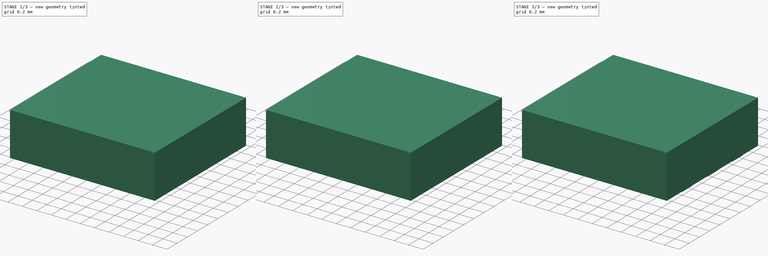
[diagram: build sequence overview — one tinted view per stage of 3, left to right]
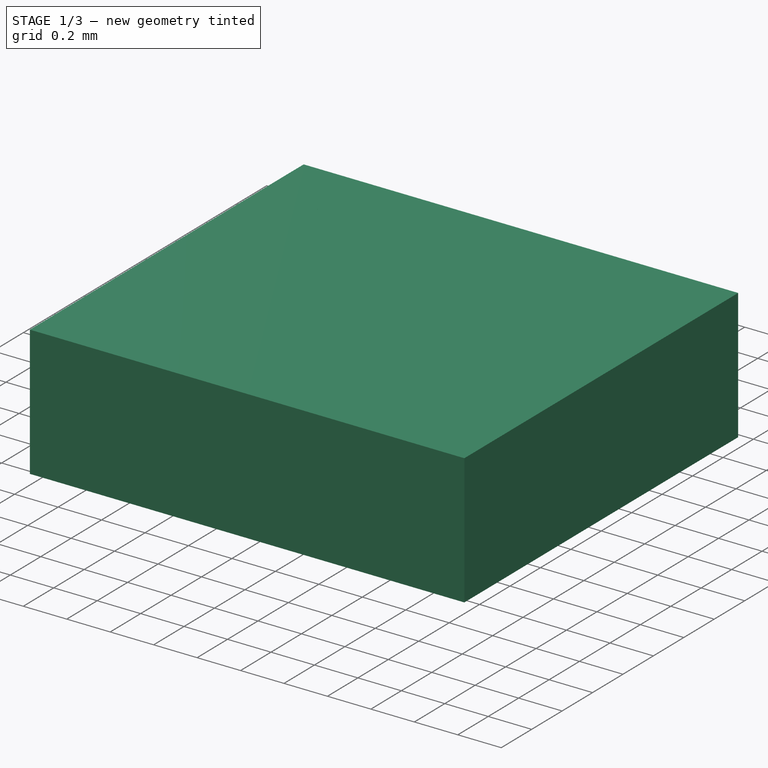
[diagram: stage 1 of 3 — iso view after this stage's code; geometry added in this stage tinted green]
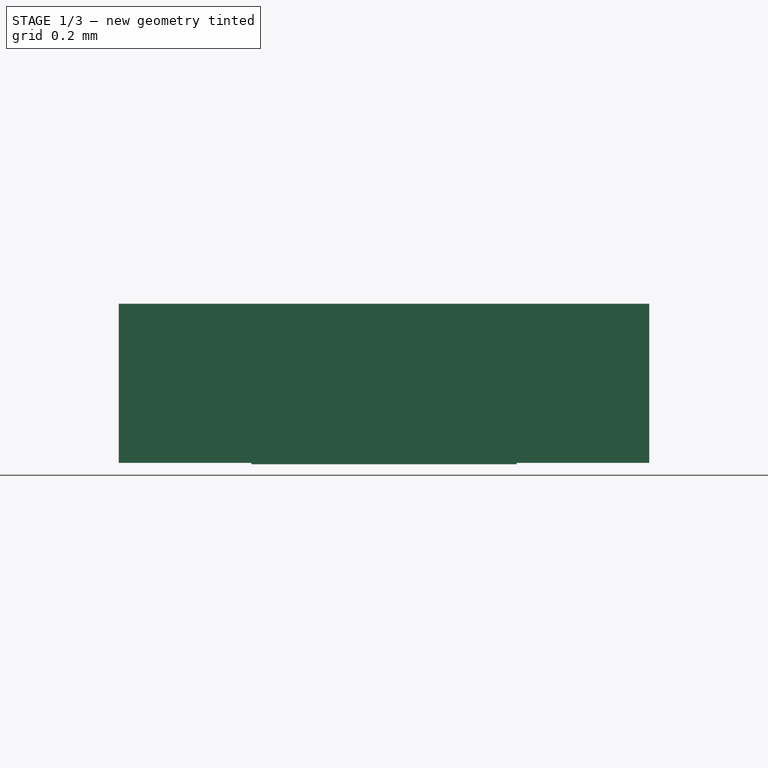
[diagram: stage 1 of 3 — front view after this stage's code; geometry added in this stage tinted green]
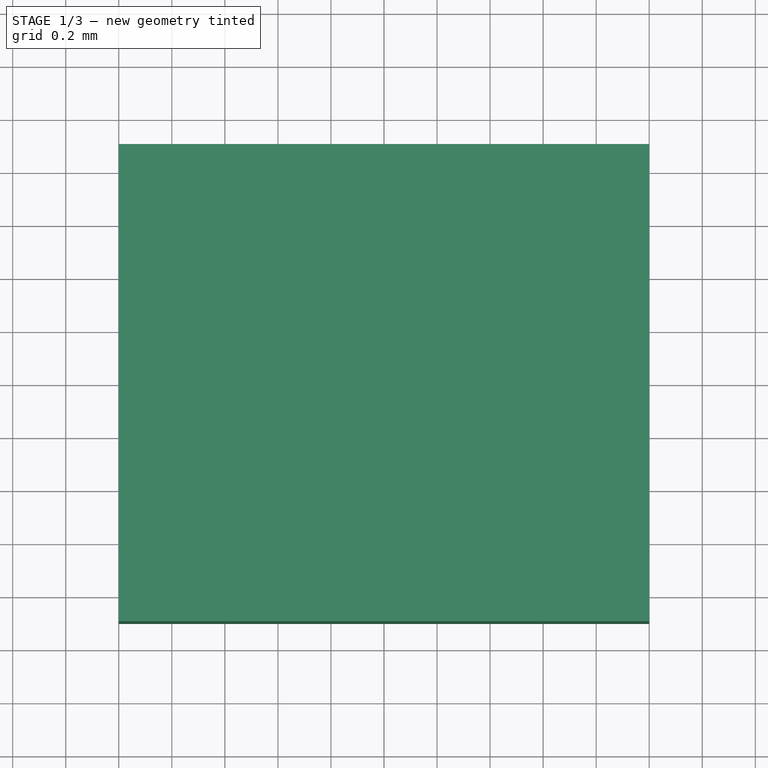
[diagram: stage 1 of 3 — top view after this stage's code; geometry added in this stage tinted green]
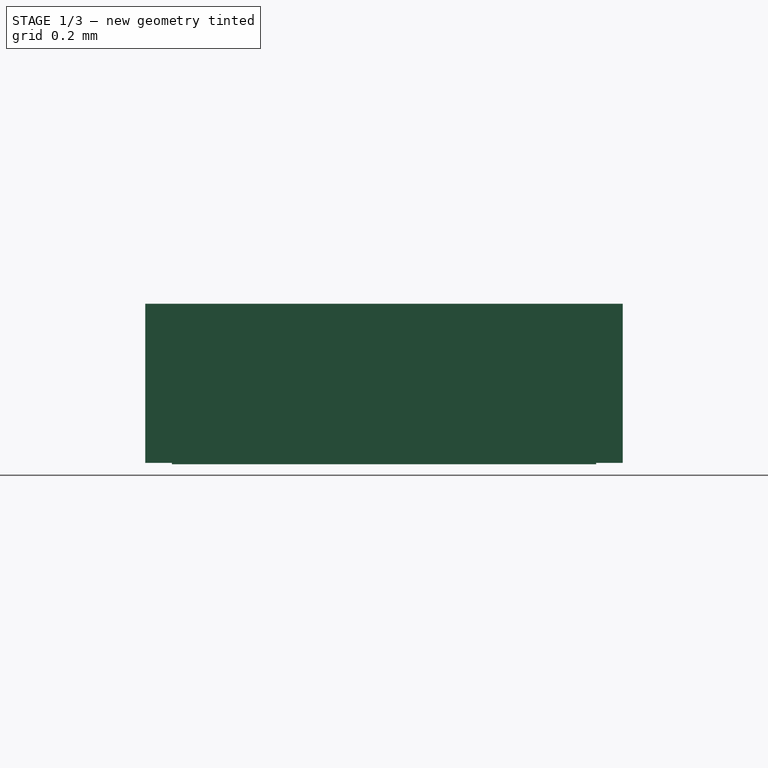
[diagram: stage 1 of 3 — right view after this stage's code; geometry added in this stage tinted green]
FCSTD DOCUMENT  (FreeCAD 1.0R39319 (Git))
Label: USP-6C
License: All rights reserved
LicenseURL: http://en.wikipedia.org/wiki/All_rights_reserved
objects: Sketcher::SketchObject×7, PartDesign::Pad×6, PartDesign::Body×6, Part::FeaturePython×1, PartDesign::ShapeBinder×1, PartDesign::Pocket×1
note: 42 computed .brp shape members not serialized (recipe doc carries the construction recipe); baked Part::Feature solids carry a one-line shape summary decoded from their .brp

FEATURE [Sketcher::SketchObject] Sketch
  ArcFitTolerance = 1e-06
  AttachmentSupport = -> [XY_Plane]
  FullyConstrained = true
  MakeInternals = false
  MapMode = 5
  sketch-geometry (5):
    g0: LineSegment StartX=-1 StartY=-0.9 StartZ=0 EndX=1 EndY=-0.9 EndZ=0
    g1: LineSegment StartX=1 StartY=-0.9 StartZ=0 EndX=1 EndY=0.9 EndZ=0
    g2: LineSegment StartX=1 StartY=0.9 StartZ=0 EndX=-1 EndY=0.9 EndZ=0
    g3: LineSegment StartX=-1 StartY=0.9 StartZ=0 EndX=-1 EndY=-0.9 EndZ=0
    g4: GeomPoint [constr] X=0 Y=0 Z=0
  constraints (12):
    c: Coincident(g0,g1)
    c: Coincident(g1,g2)
    c: Coincident(g2,g3)
    c: Coincident(g3,g0)
    c: Horizontal(g0)
    c: Horizontal(g2)
    c: Vertical(g1)
    c: Vertical(g3)
    c: Symmetric(g2,g0,g4)
    c: Distance(g1,g3) = 2
    c: Distance(g0,g2) = 1.8
    c: Coincident(g4,g-1)
FEATURE [PartDesign::Pad] Pad
  Direction = (0,0,1)
  Length = 0.6
  Length2 = 10
  Profile = -> Sketch
  ReferenceAxis = -> Sketch [N_Axis]
  Suppressed = false
  Type = 0
FEATURE [PartDesign::Body] Body
  AllowCompound = false
  Group = -> [Sketch,Pad,Sketch005,Pocket]
  Origin = -> Origin
  Tip = -> Pocket
FEATURE [PartDesign::Pad] Pad004
  Direction = (0,0,1)
  Length = 0.02
  Length2 = 10
  Placement = pos=(0,0,0.6) rot=(0,0,1;0rad)
  Profile = -> Sketch004
  ReferenceAxis = -> Sketch004 [N_Axis]
  Reversed = true
  Suppressed = false
  Type = 0
FEATURE [PartDesign::Body] Body004  label="Indicator"
  AllowCompound = false
  Group = -> [CopyPad,Sketch004,Pad004]
  Origin = -> Origin004
  Tip = -> Pad004
FEATURE [Sketcher::SketchObject] Sketch006
  ArcFitTolerance = 1e-06
  AttachmentSupport = -> [XY_Plane005]
  FullyConstrained = true
  MakeInternals = false
  MapMode = 5
  sketch-geometry (12):
    g0: LineSegment StartX=-0.5 StartY=0.7 StartZ=0 EndX=-0.5 EndY=-0.7 EndZ=0
    g1: LineSegment StartX=0.5 StartY=0.7 StartZ=0 EndX=0.5 EndY=-0.7 EndZ=0
    g2: LineSegment StartX=-0.35 StartY=0.8 StartZ=0 EndX=0.35 EndY=0.8 EndZ=0
    g3: LineSegment StartX=-0.35 StartY=-0.8 StartZ=0 EndX=0.35 EndY=-0.8 EndZ=0
    g4: LineSegment StartX=-0.5 StartY=0.7 StartZ=0 EndX=-0.35 EndY=0.7 EndZ=0
    g5: LineSegment StartX=-0.35 StartY=0.7 StartZ=0 EndX=-0.35 EndY=0.8 EndZ=0
    g6: LineSegment StartX=0.5 StartY=0.7 StartZ=0 EndX=0.35 EndY=0.7 EndZ=0
    g7: LineSegment StartX=0.35 StartY=0.8 StartZ=0 EndX=0.35 EndY=0.7 EndZ=0
    g8: LineSegment StartX=-0.5 StartY=-0.7 StartZ=0 EndX=-0.35 EndY=-0.7 EndZ=0
    g9: LineSegment StartX=-0.35 StartY=-0.7 StartZ=0 EndX=-0.35 EndY=-0.8 EndZ=0
    g10: LineSegment StartX=0.5 StartY=-0.7 StartZ=0 EndX=0.35 EndY=-0.7 EndZ=0
    g11: LineSegment StartX=0.35 StartY=-0.8 StartZ=0 EndX=0.35 EndY=-0.7 EndZ=0
  constraints (32):
    c: DistanceY(g0,g0) = 1.4
    c: Symmetric(g0,g0,g-1)
    c: DistanceX(g0,g-1) = 0.5
    c: Equal(g0,g1)
    c: DistanceX(g0,g1) = 1
    c: Symmetric(g1,g1,g-1)
    c: Distance(g2) = 0.7
    c: Symmetric(g2,g2,g-2)
    c: DistanceY(g-1,g2) = 0.8
    c: Equal(g2,g3)
    c: Symmetric(g3,g3,g-2)
    c: DistanceY(g3,g2) = 1.6
    c: Coincident(g4,g0)
    c: Horizontal(g4)
    c: Coincident(g5,g4)
    c: Coincident(g5,g2)
    c: Vertical(g5)
    c: Distance(g6) = 0.15
    c: Coincident(g6,g1)
    c: Horizontal(g6)
    c: Coincident(g7,g2)
    c: Coincident(g7,g6)
    c: Distance(g8) = 0.15
    c: Coincident(g8,g0)
    c: Horizontal(g8)
    c: Coincident(g9,g8)
    c: Coincident(g9,g3)
    c: Distance(g10) = 0.15
    c: Coincident(g10,g1)
    c: Horizontal(g10)
    c: Coincident(g11,g3)
    c: Coincident(g11,g10)
FEATURE [PartDesign::Pad] Pad005
  Direction = (0,0,1)
  Length = 0.005
  Length2 = 10
  Profile = -> Sketch006
  ReferenceAxis = -> Sketch006 [N_Axis]
  Reversed = true
  Suppressed = false
  Type = 0
FEATURE [PartDesign::Body] Body005  label="PIN_EP"
  AllowCompound = false
  Group = -> [Sketch006,Pad005]
  Origin = -> Origin005
  Tip = -> Pad005
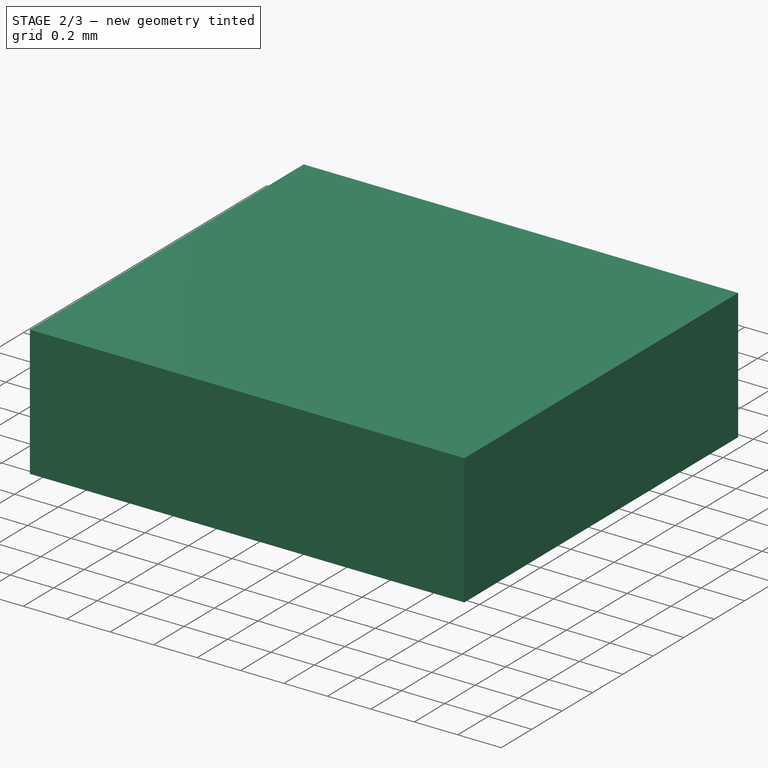
[diagram: stage 2 of 3 — iso view after this stage's code; geometry added in this stage tinted green]
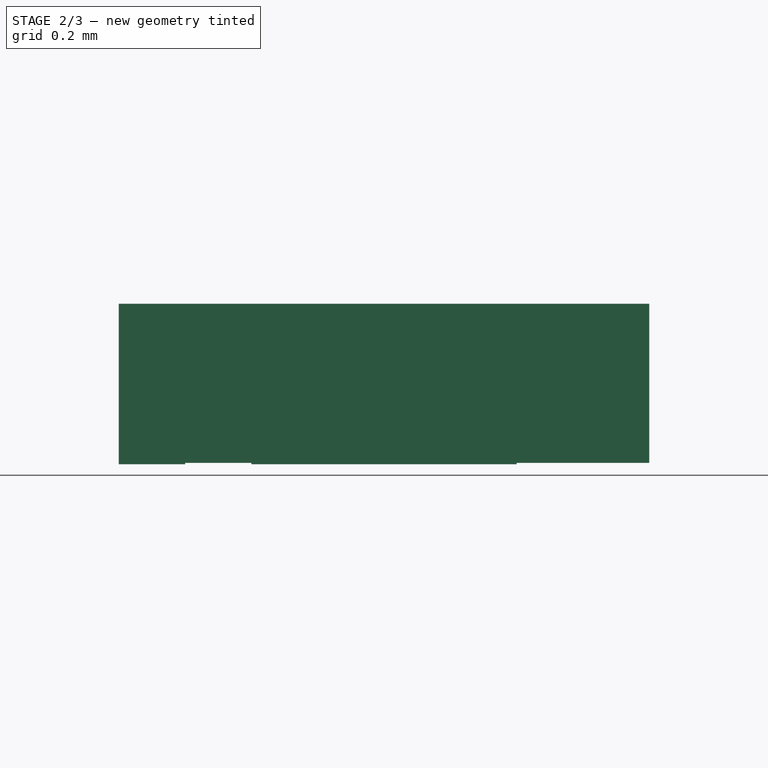
[diagram: stage 2 of 3 — front view after this stage's code; geometry added in this stage tinted green]
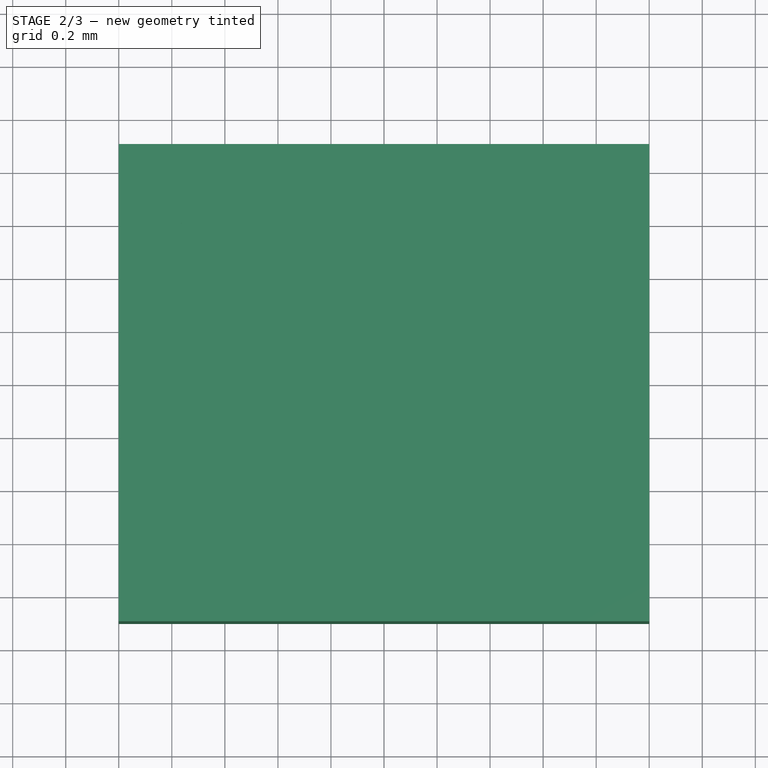
[diagram: stage 2 of 3 — top view after this stage's code; geometry added in this stage tinted green]
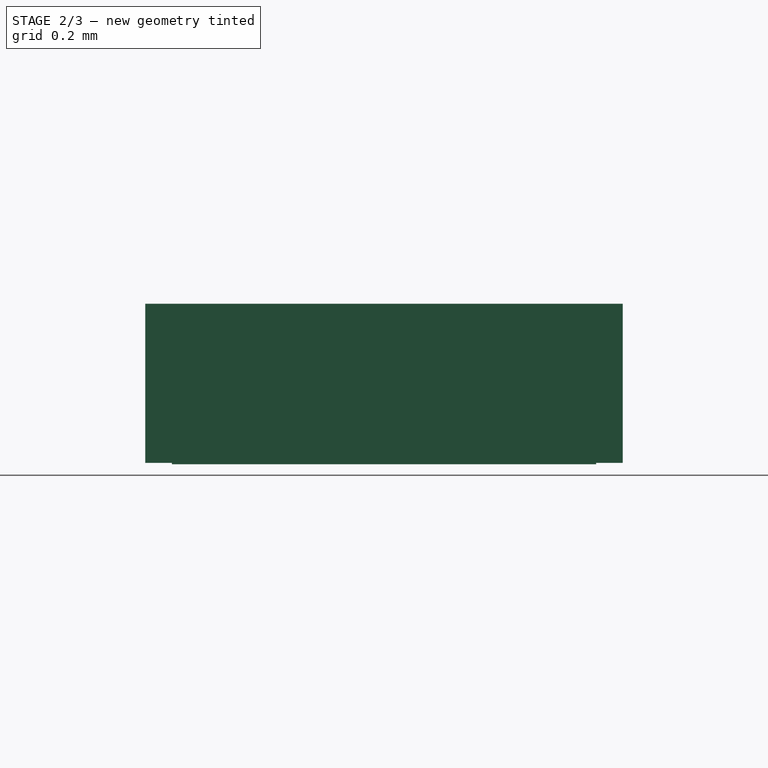
[diagram: stage 2 of 3 — right view after this stage's code; geometry added in this stage tinted green]
FEATURE [PartDesign::Body] Body002  label="PIN006"
  AllowCompound = false
  Group = -> [Sketch002,Pad002]
  Origin = -> Origin002
  Tip = -> Pad002
FEATURE [Sketcher::SketchObject] Sketch003
  ArcFitTolerance = 1e-06
  AttachmentSupport = -> [XY_Plane003]
  FullyConstrained = true
  MakeInternals = false
  MapMode = 5
  sketch-geometry (5):
    g0: LineSegment StartX=-1 StartY=-0.1 StartZ=0 EndX=-0.75 EndY=-0.1 EndZ=0
    g1: LineSegment StartX=-0.75 StartY=-0.1 StartZ=0 EndX=-0.75 EndY=0.1 EndZ=0
    g2: LineSegment StartX=-0.75 StartY=0.1 StartZ=0 EndX=-1 EndY=0.1 EndZ=0
    g3: LineSegment StartX=-1 StartY=0.1 StartZ=0 EndX=-1 EndY=-0.1 EndZ=0
    g4: GeomPoint [constr] X=-0.875 Y=0 Z=0
  constraints (13):
    c: Coincident(g0,g1)
    c: Coincident(g1,g2)
    c: Coincident(g2,g3)
    c: Coincident(g3,g0)
    c: Horizontal(g0)
    c: Horizontal(g2)
    c: Vertical(g1)
    c: Vertical(g3)
    c: Symmetric(g2,g0,g4)
    c: Distance(g1,g3) = 0.25
    c: Distance(g0,g2) = 0.2
    c: PointOnObject(g4,g-1)
    c: DistanceX(g4,g-1) = 0.875
FEATURE [PartDesign::Pad] Pad003
  Direction = (0,0,1)
  Length = 0.005
  Length2 = 10
  Profile = -> Sketch003
  ReferenceAxis = -> Sketch003 [N_Axis]
  Reversed = true
  Suppressed = false
  Type = 0
FEATURE [PartDesign::ShapeBinder] CopyPad
  Placement = pos=(0,0,0.6) rot=(0,0,1;0rad)
  TraceSupport = false
FEATURE [Sketcher::SketchObject] Sketch004
  ArcFitTolerance = 1e-06
  AttachmentSupport = -> [CopyPad]
  FullyConstrained = true
  MakeInternals = false
  MapMode = 5
  Placement = pos=(0,0,0.6) rot=(0,0,1;0rad)
  sketch-geometry (1):
    g0: Circle CenterX=-0.75 CenterY=0.7 CenterZ=0 NormalX=0 NormalY=0 NormalZ=1 AngleXU=0 Radius=0.1
  constraints (3):
    c: Diameter(g0) = 0.2
    c: DistanceX(g0,g-1) = 0.75
    c: DistanceY(g-1,g0) = 0.7
FEATURE [Sketcher::SketchObject] Sketch005
  ArcFitTolerance = 1e-06
  AttachmentSupport = -> [Pad]
  FullyConstrained = true
  MakeInternals = false
  MapMode = 5
  Placement = pos=(0,0,0.6) rot=(0,0,1;0rad)
  sketch-geometry (1):
    g0: Circle CenterX=-0.75 CenterY=0.7 CenterZ=0 NormalX=0 NormalY=0 NormalZ=1 AngleXU=0 Radius=0.1
  constraints (3):
    c: Diameter(g0) = 0.2
    c: DistanceX(g0,g-1) = 0.75
    c: DistanceY(g-1,g0) = 0.7
FEATURE [PartDesign::Pocket] Pocket
  BaseFeature = -> Pad
  Direction = (0,0,-1)
  Length = 0.02
  Length2 = 5
  Profile = -> Sketch005
  ReferenceAxis = -> Sketch005 [N_Axis]
  Suppressed = false
  Type = 0
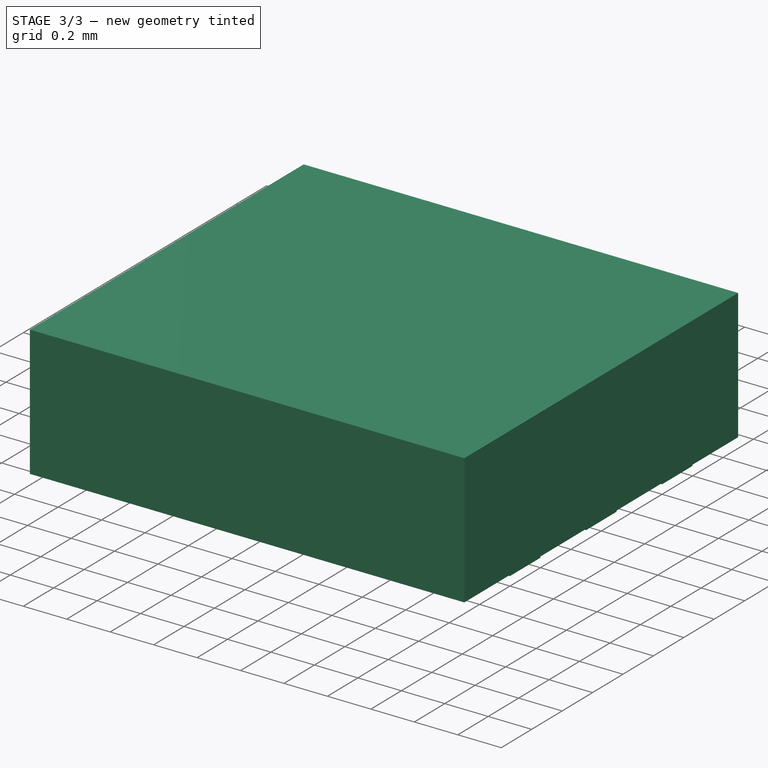
[diagram: stage 3 of 3 — iso view after this stage's code; geometry added in this stage tinted green]
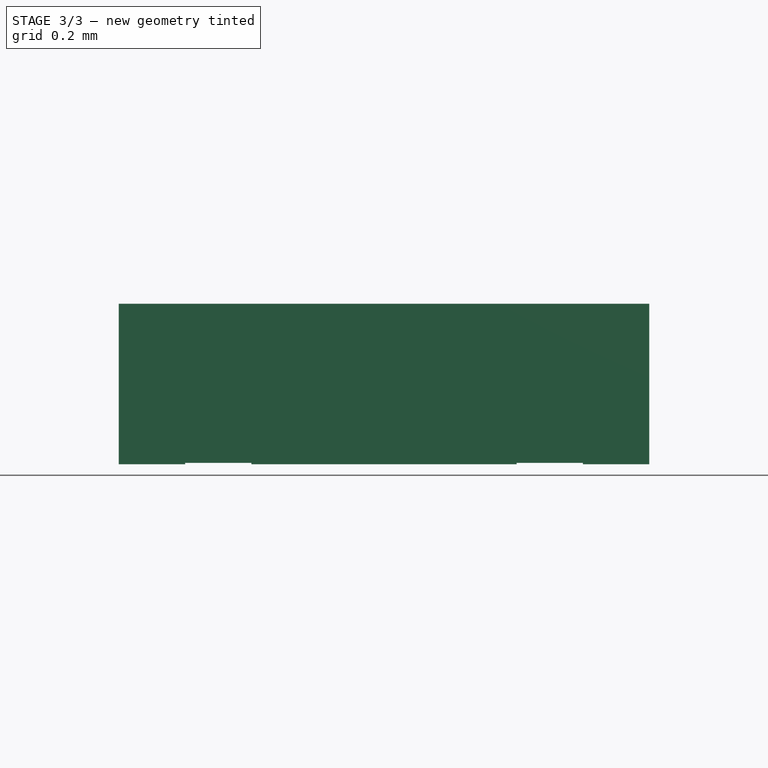
[diagram: stage 3 of 3 — front view after this stage's code; geometry added in this stage tinted green]
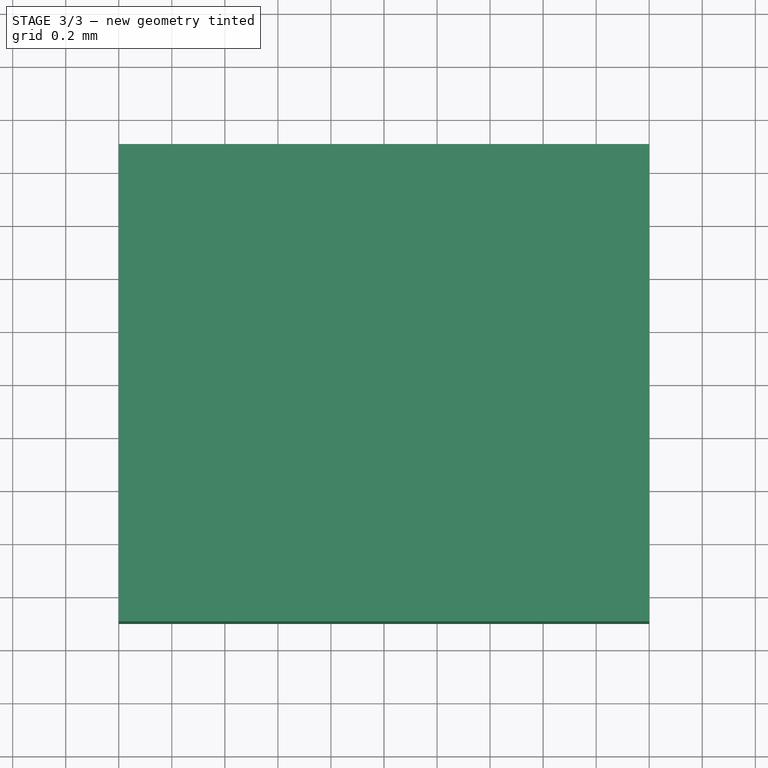
[diagram: stage 3 of 3 — top view after this stage's code; geometry added in this stage tinted green]
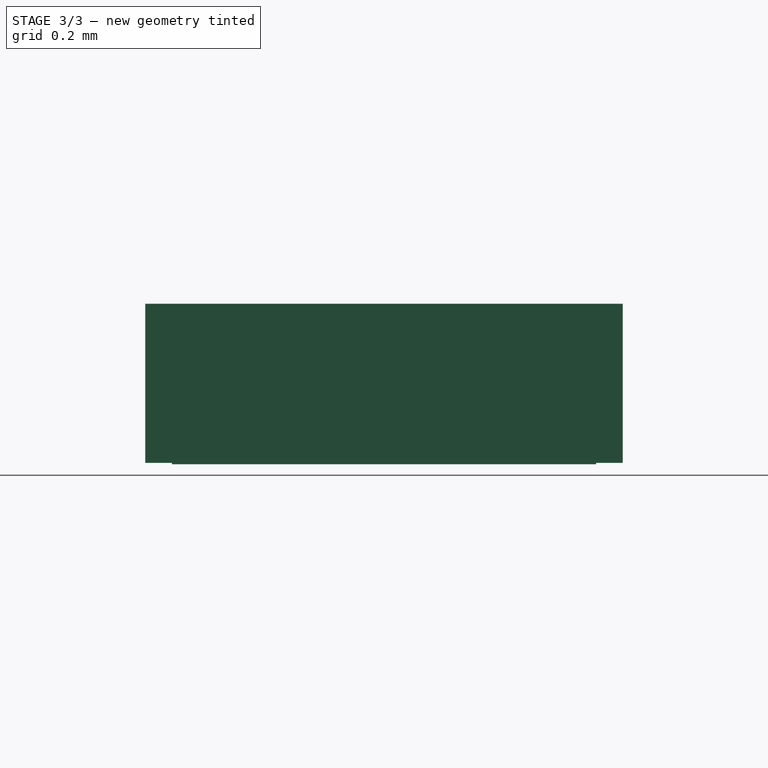
[diagram: stage 3 of 3 — right view after this stage's code; geometry added in this stage tinted green]
FEATURE [Sketcher::SketchObject] Sketch001  label="PIN1"
  ArcFitTolerance = 1e-06
  AttachmentSupport = -> [XY_Plane001]
  FullyConstrained = true
  MakeInternals = false
  MapMode = 5
  sketch-geometry (5):
    g0: LineSegment StartX=-1 StartY=0.4 StartZ=0 EndX=-0.75 EndY=0.4 EndZ=0
    g1: LineSegment StartX=-0.75 StartY=0.4 StartZ=0 EndX=-0.75 EndY=0.7 EndZ=0
    g2: LineSegment StartX=-0.75 StartY=0.7 StartZ=0 EndX=-1 EndY=0.7 EndZ=0
    g3: LineSegment StartX=-1 StartY=0.7 StartZ=0 EndX=-1 EndY=0.4 EndZ=0
    g4: GeomPoint [constr] X=-0.875 Y=0.55 Z=0
  constraints (13):
    c: Coincident(g0,g1)
    c: Coincident(g1,g2)
    c: Coincident(g2,g3)
    c: Coincident(g3,g0)
    c: Horizontal(g0)
    c: Horizontal(g2)
    c: Vertical(g1)
    c: Vertical(g3)
    c: Symmetric(g2,g0,g4)
    c: Distance(g1,g3) = 0.25
    c: Distance(g0,g2) = 0.3
    c: DistanceY(g-1,g4) = 0.55
    c: DistanceX(g4,g-1) = 0.875
FEATURE [Sketcher::SketchObject] Sketch002  label="PIN6"
  ArcFitTolerance = 1e-06
  AttachmentSupport = -> [XY_Plane002]
  FullyConstrained = true
  MakeInternals = false
  MapMode = 5
  sketch-geometry (5):
    g0: LineSegment StartX=0.75 StartY=0.4 StartZ=0 EndX=1 EndY=0.4 EndZ=0
    g1: LineSegment StartX=1 StartY=0.4 StartZ=0 EndX=1 EndY=0.6 EndZ=0
    g2: LineSegment StartX=1 StartY=0.6 StartZ=0 EndX=0.75 EndY=0.6 EndZ=0
    g3: LineSegment StartX=0.75 StartY=0.6 StartZ=0 EndX=0.75 EndY=0.4 EndZ=0
    g4: GeomPoint [constr] X=0.875 Y=0.5 Z=0
  constraints (13):
    c: Coincident(g0,g1)
    c: Coincident(g1,g2)
    c: Coincident(g2,g3)
    c: Coincident(g3,g0)
    c: Horizontal(g0)
    c: Horizontal(g2)
    c: Vertical(g1)
    c: Vertical(g3)
    c: Symmetric(g2,g0,g4)
    c: Distance(g1,g3) = 0.25
    c: Distance(g0,g2) = 0.2
    c: DistanceY(g4,g-1) = -0.5
    c: DistanceX(g4,g-1) = -0.875
FEATURE [PartDesign::Pad] Pad001
  Direction = (0,0,1)
  Length = 0.005
  Length2 = 10
  Profile = -> Sketch001
  ReferenceAxis = -> Sketch001 [N_Axis]
  Reversed = true
  Suppressed = false
  Type = 0
FEATURE [PartDesign::Body] Body001  label="PIN001"
  AllowCompound = false
  Group = -> [Sketch001,Pad001]
  Origin = -> Origin001
  Tip = -> Pad001
FEATURE [PartDesign::Pad] Pad002
  Direction = (0,0,1)
  Length = 0.005
  Length2 = 10
  Profile = -> Sketch002
  ReferenceAxis = -> Sketch002 [N_Axis]
  Reversed = true
  Suppressed = false
  Type = 0
FEATURE [PartDesign::Body] Body003  label="PIN002"
  AllowCompound = false
  Group = -> [Sketch003,Pad003]
  Origin = -> Origin003
  Tip = -> Pad003
FEATURE [Part::FeaturePython] Array  label="PIN2_5"  # Draft array (typed FeaturePython)
  AlwaysSyncPlacement = false
  Angle = 360
  ArrayType = 0
  Axis = (0,0,1)
  Base = -> Body003
  Center = (0,0,0)
  Count = 4
  ExpandArray = false
  Fuse = false
  IntervalAxis = (0,0,0)
  IntervalX = (1.75,0,0)
  IntervalY = (0,-0.5,0)
  IntervalZ = (0,0,0)
  NumberCircles = 3
  NumberPolar = 5
  NumberX = 2
  NumberY = 2
  NumberZ = 1
  PlacementList = 4 placements: [(0,0,0),(0,-0.5,0),(1.75,0,0),(1.75,-0.5,0)]
  RadialDistance = 50
  ScaleList = (4) [(1,1,1),(1,1,1),(1,1,1),(1,1,1)]
  Symmetry = 1
  TangentialDistance = 25
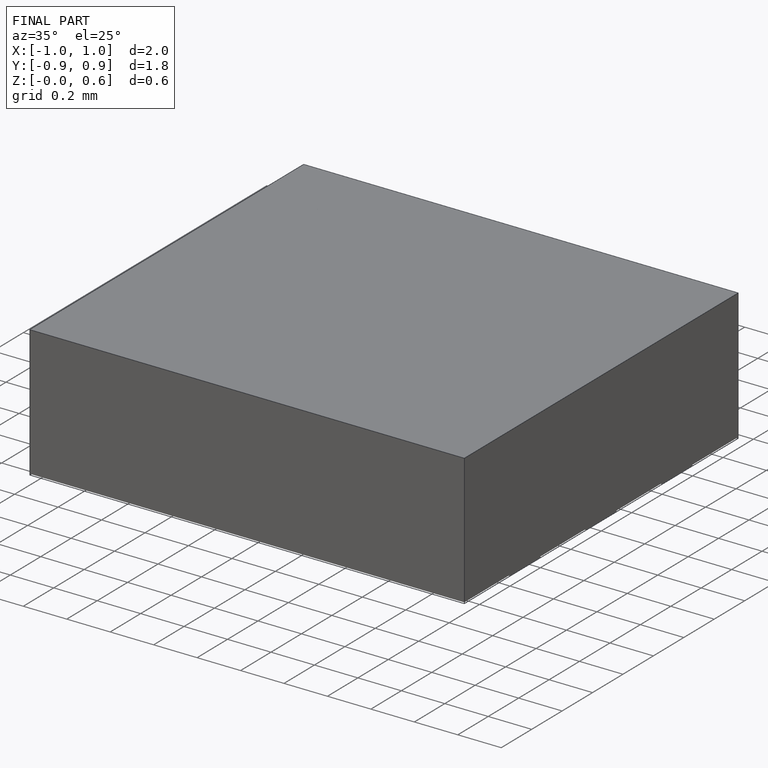
[diagram: finished part — iso view with bounding-box wireframe]
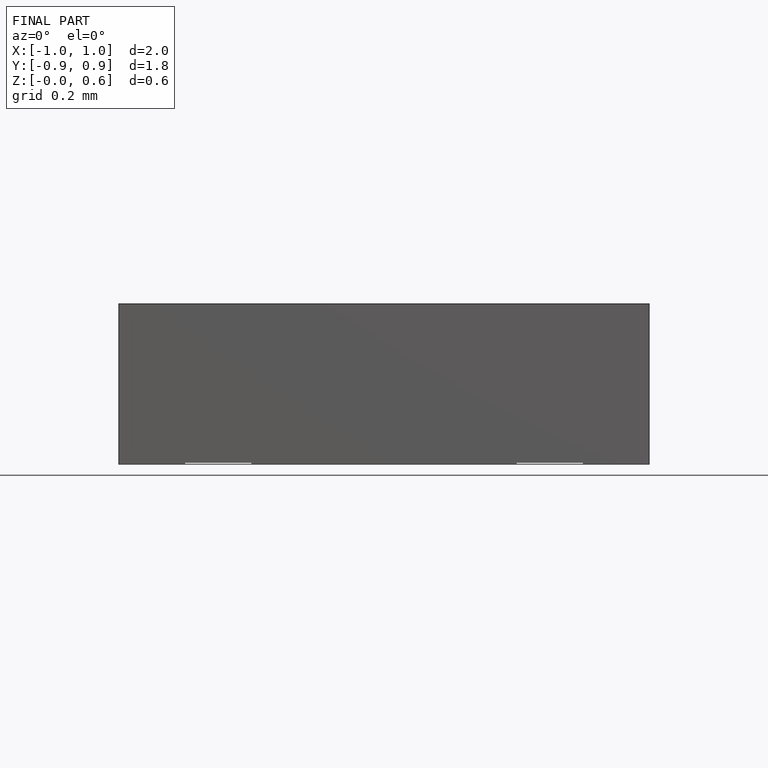
[diagram: finished part — front view with bounding-box wireframe]
